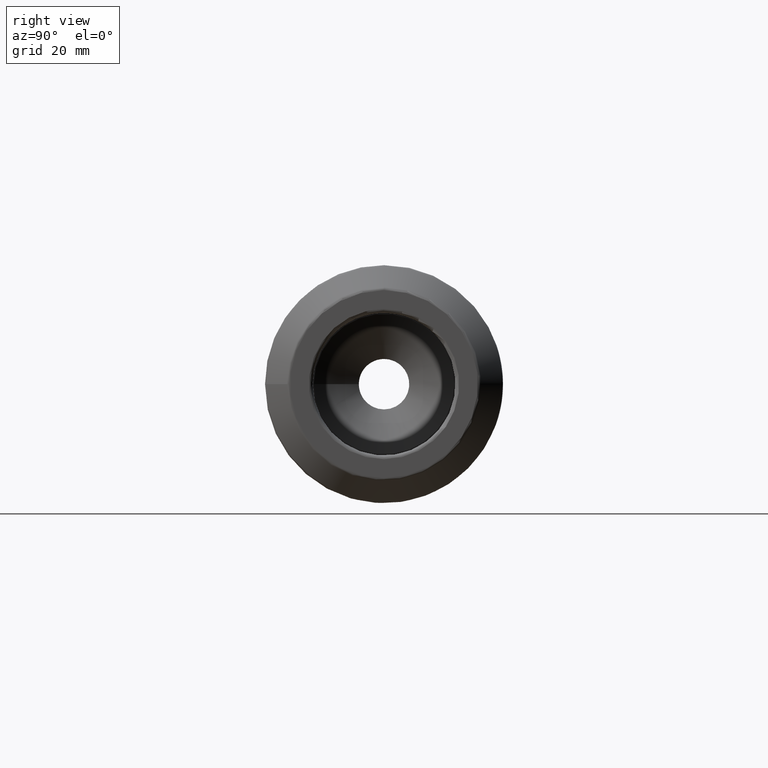
[diagram: clean part render]
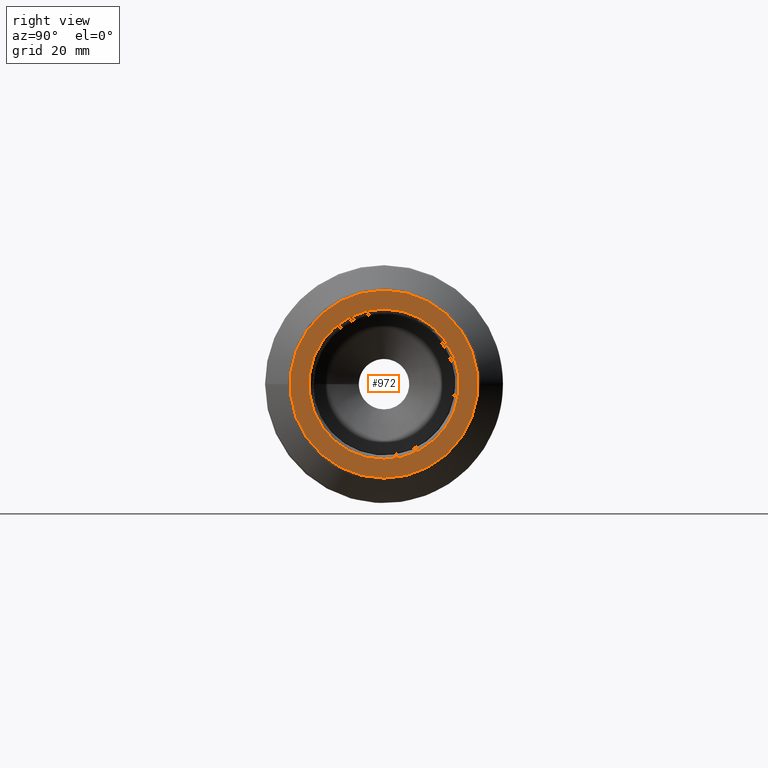
[diagram: same view with one face highlighted and labeled with its STEP entity id]
A machine part, right view. The second image highlights one B-rep face of the part: STEP entity #972.
In plain terms, the highlighted planar face has unit normal (1, 0, 0).
Its self-contained STEP definition (entity closure, byte-faithful):
#188=FACE_BOUND('',#274,.T.);
#198=PLANE('',#1057);
#215=FACE_OUTER_BOUND('',#273,.T.);
#273=EDGE_LOOP('',(#662));
#274=EDGE_LOOP('',(#663));
#343=CIRCLE('',#1056,20.05);
#344=CIRCLE('',#1058,25.0857864376269);
#407=VERTEX_POINT('',#1477);
#408=VERTEX_POINT('',#1481);
#508=EDGE_CURVE('',#407,#407,#343,.T.);
#509=EDGE_CURVE('',#408,#408,#344,.T.);
#662=ORIENTED_EDGE('',*,*,#509,.F.);
#663=ORIENTED_EDGE('',*,*,#508,.F.);
#972=ADVANCED_FACE('',(#215,#188),#198,.T.);
#1056=AXIS2_PLACEMENT_3D('',#1479,#1183,#1184);
#1057=AXIS2_PLACEMENT_3D('',#1480,#1185,#1186);
#1058=AXIS2_PLACEMENT_3D('',#1482,#1187,#1188);
#1183=DIRECTION('center_axis',(1.,0.,0.));
#1184=DIRECTION('ref_axis',(0.,-1.,1.83697019872103E-16));
#1185=DIRECTION('center_axis',(1.,0.,0.));
#1186=DIRECTION('ref_axis',(0.,0.,-1.));
#1187=DIRECTION('center_axis',(-1.,0.,0.));
#1188=DIRECTION('ref_axis',(0.,-1.,1.83697019872103E-16));
#1477=CARTESIAN_POINT('',(107.95,-2.45541683229045E-15,20.05));
#1479=CARTESIAN_POINT('Origin',(107.95,0.,0.));
#1480=CARTESIAN_POINT('Origin',(107.95,19.05,0.));
#1481=CARTESIAN_POINT('',(107.95,-3.07212280649339E-15,25.0857864376269));
#1482=CARTESIAN_POINT('Origin',(107.95,0.,0.));